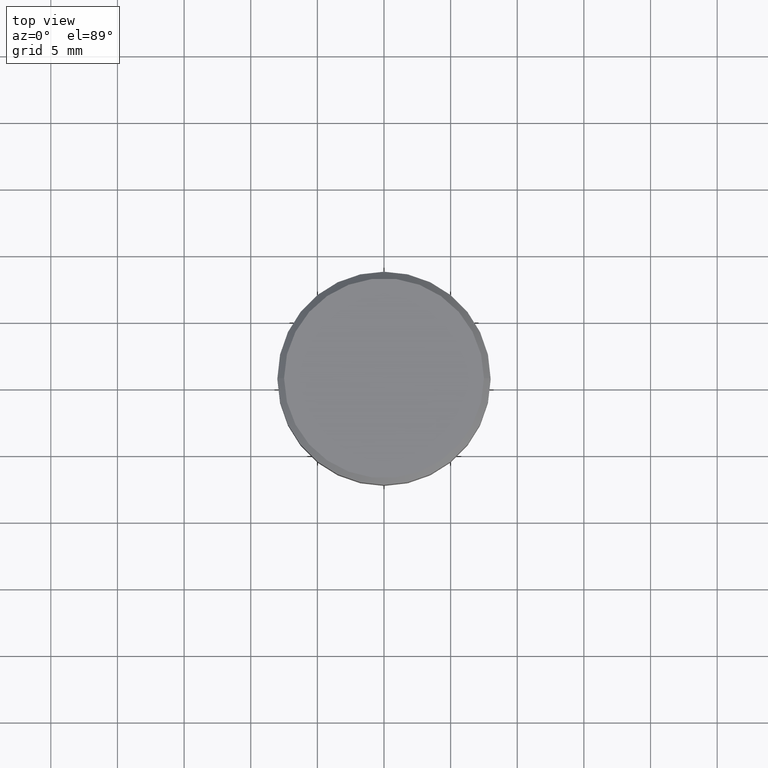
[diagram: clean part render]
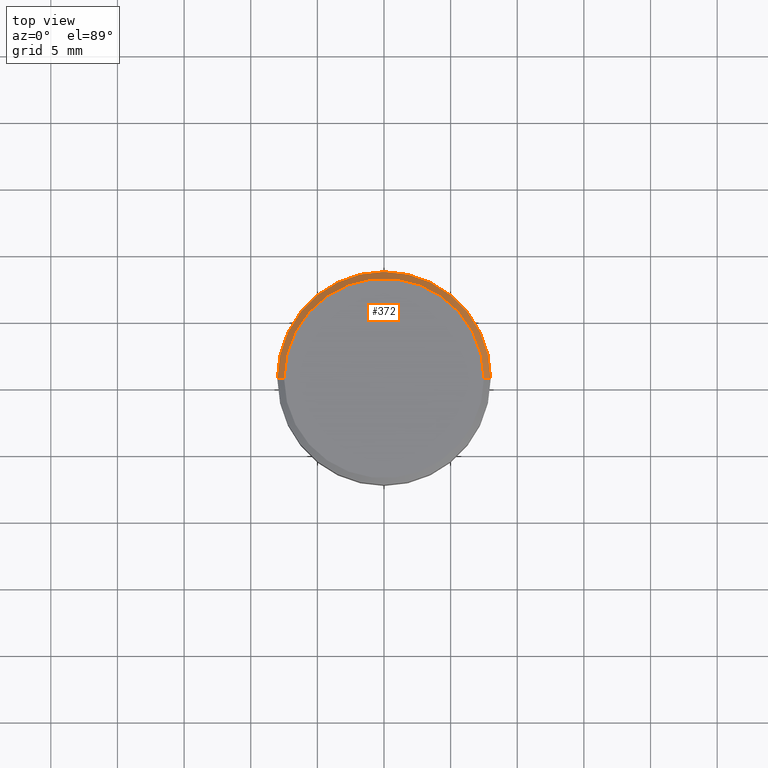
[diagram: same view with one face highlighted and labeled with its STEP entity id]
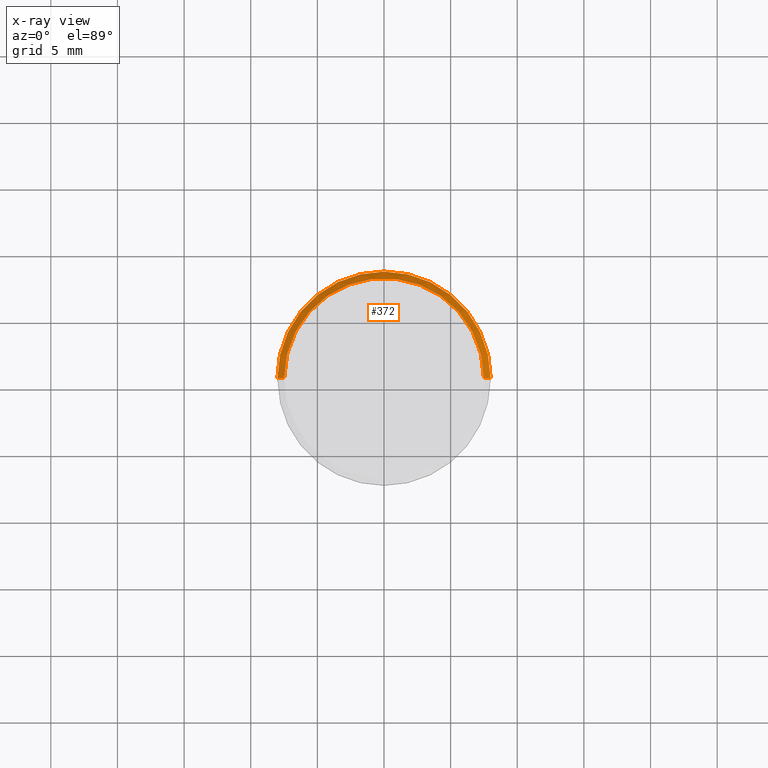
[diagram: x-ray of the same camera — body ghosted, the highlighted face saturated]
A machine part, top view. The second image highlights one B-rep face of the part: STEP entity #372.
The next image is the same camera in x-ray: the body ghosted, the highlighted face saturated — about 0% of this face is hidden behind the body in this view.
In plain terms, the highlighted conical surface has half-angle 45 deg.
Its self-contained STEP definition (entity closure, byte-faithful):
#10 = CIRCLE ( 'NONE', #25, 8.000000000000000000 ) ;
#11 = CARTESIAN_POINT ( 'NONE',  ( 0.000000000000000000, 0.000000000000000000, 0.000000000000000000 ) ) ;
#15 = CARTESIAN_POINT ( 'NONE',  ( -8.000000000000000000, 9.797174393178825657E-16, -0.5000000000000004441 ) ) ;
#25 = AXIS2_PLACEMENT_3D ( 'NONE', #304, #353, #252 ) ;
#67 = ORIENTED_EDGE ( 'NONE', *, *, #137, .F. ) ;
#76 = AXIS2_PLACEMENT_3D ( 'NONE', #550, #502, #217 ) ;
#82 = VECTOR ( 'NONE', #199, 1000.000000000000114 ) ;
#88 = CARTESIAN_POINT ( 'NONE',  ( 8.000000000000000000, 0.000000000000000000, -0.5000000000000004441 ) ) ;
#113 = EDGE_CURVE ( 'NONE', #330, #582, #161, .T. ) ;
#117 = ORIENTED_EDGE ( 'NONE', *, *, #475, .F. ) ;
#132 = EDGE_LOOP ( 'NONE', ( #117, #287, #67, #438 ) ) ;
#137 = EDGE_CURVE ( 'NONE', #357, #582, #10, .T. ) ;
#142 = CARTESIAN_POINT ( 'NONE',  ( 7.500000000000003553, 9.491012693391989759E-16, 0.000000000000000000 ) ) ;
#161 = LINE ( 'NONE', #575, #82 ) ;
#194 = DIRECTION ( 'NONE',  ( -0.7071067811865451302, 0.000000000000000000, -0.7071067811865500152 ) ) ;
#199 = DIRECTION ( 'NONE',  ( 0.7071067811865451302, 8.659560562354903276E-17, -0.7071067811865500152 ) ) ;
#217 = DIRECTION ( 'NONE',  ( 1.000000000000000000, 0.000000000000000000, 0.000000000000000000 ) ) ;
#219 = CARTESIAN_POINT ( 'NONE',  ( -7.500000000000003553, 0.000000000000000000, 0.000000000000000000 ) ) ;
#233 = CIRCLE ( 'NONE', #76, 7.500000000000003553 ) ;
#247 = CARTESIAN_POINT ( 'NONE',  ( -7.500000000000003553, 0.000000000000000000, 0.000000000000000000 ) ) ;
#252 = DIRECTION ( 'NONE',  ( 1.000000000000000000, 0.000000000000000000, 0.000000000000000000 ) ) ;
#253 = VERTEX_POINT ( 'NONE', #219 ) ;
#287 = ORIENTED_EDGE ( 'NONE', *, *, #113, .T. ) ;
#304 = CARTESIAN_POINT ( 'NONE',  ( 0.000000000000000000, 0.000000000000000000, -0.5000000000000004441 ) ) ;
#329 = EDGE_CURVE ( 'NONE', #253, #357, #574, .T. ) ;
#330 = VERTEX_POINT ( 'NONE', #142 ) ;
#339 = DIRECTION ( 'NONE',  ( -1.000000000000000000, 0.000000000000000000, 0.000000000000000000 ) ) ;
#353 = DIRECTION ( 'NONE',  ( 0.000000000000000000, 0.000000000000000000, -1.000000000000000000 ) ) ;
#357 = VERTEX_POINT ( 'NONE', #15 ) ;
#372 = ADVANCED_FACE ( 'NONE', ( #562 ), #470, .T. ) ;
#438 = ORIENTED_EDGE ( 'NONE', *, *, #329, .F. ) ;
#470 = CONICAL_SURFACE ( 'NONE', #569, 7.500000000000003553, 0.7853981633974447263 ) ;
#475 = EDGE_CURVE ( 'NONE', #330, #253, #233, .T. ) ;
#486 = DIRECTION ( 'NONE',  ( 0.000000000000000000, 0.000000000000000000, -1.000000000000000000 ) ) ;
#502 = DIRECTION ( 'NONE',  ( -0.000000000000000000, -0.000000000000000000, 1.000000000000000000 ) ) ;
#549 = VECTOR ( 'NONE', #194, 1000.000000000000114 ) ;
#550 = CARTESIAN_POINT ( 'NONE',  ( 0.000000000000000000, 0.000000000000000000, 0.000000000000000000 ) ) ;
#562 = FACE_OUTER_BOUND ( 'NONE', #132, .T. ) ;
#569 = AXIS2_PLACEMENT_3D ( 'NONE', #11, #486, #339 ) ;
#574 = LINE ( 'NONE', #247, #549 ) ;
#575 = CARTESIAN_POINT ( 'NONE',  ( 7.500000000000003553, 9.184850993605153861E-16, 0.000000000000000000 ) ) ;
#582 = VERTEX_POINT ( 'NONE', #88 ) ;